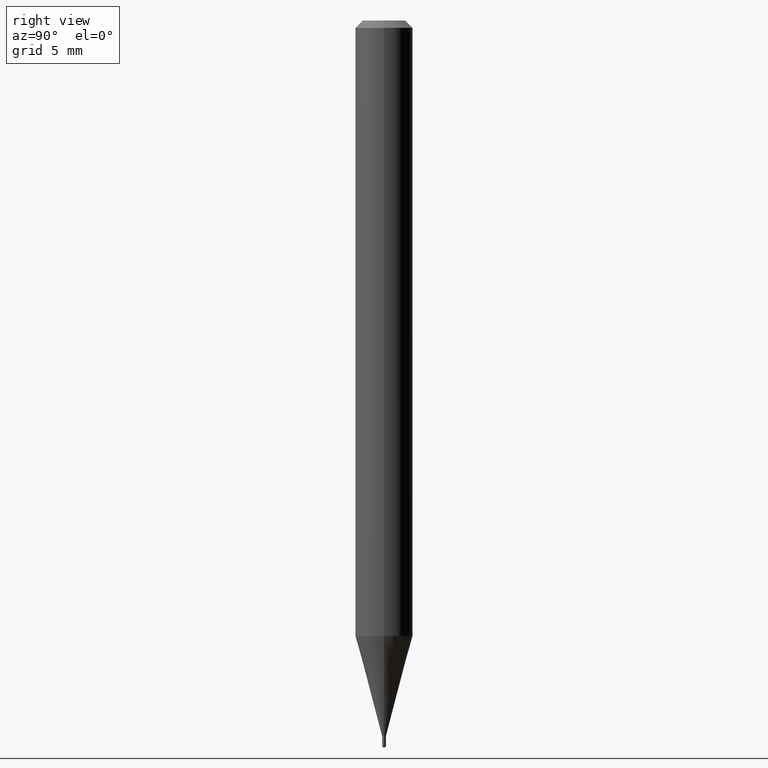
[diagram: clean part render]
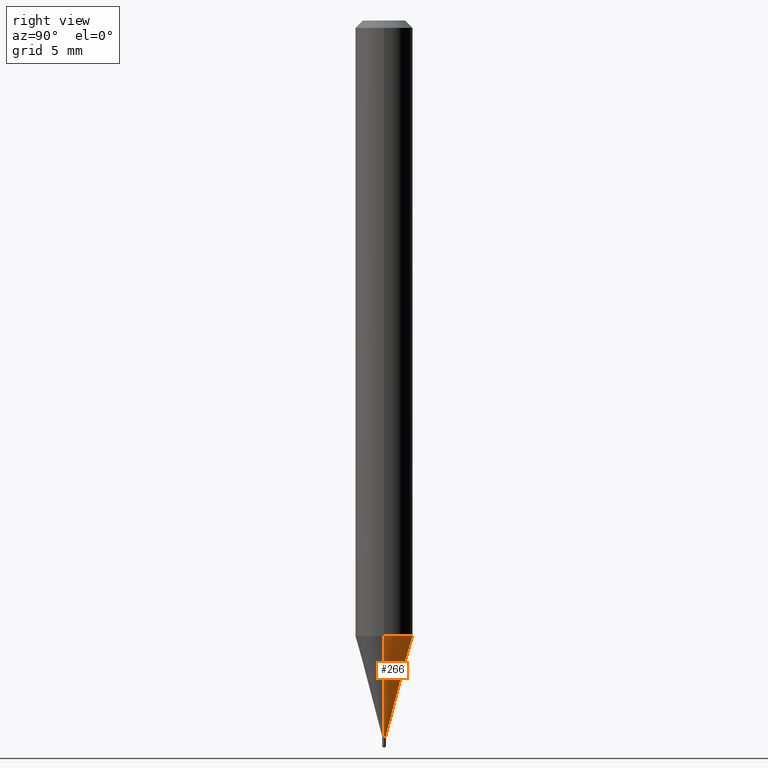
[diagram: same view with one face highlighted and labeled with its STEP entity id]
A machine part, right view. The second image highlights one B-rep face of the part: STEP entity #266.
In plain terms, the highlighted conical surface has half-angle 15 deg.
Its self-contained STEP definition (entity closure, byte-faithful):
#4 = VECTOR ( 'NONE', #139, 39.37007874015748143 ) ;
#18 = DIRECTION ( 'NONE',  ( 1.000000000000000000, -6.982962677686388195E-15, 0.000000000000000000 ) ) ;
#20 = CARTESIAN_POINT ( 'NONE',  ( 3.098076394908904962E-29, -4.423232016608266035E-15, -1.266864000502962107 ) ) ;
#26 = VERTEX_POINT ( 'NONE', #143 ) ;
#29 = EDGE_CURVE ( 'NONE', #59, #26, #282, .T. ) ;
#51 = DIRECTION ( 'NONE',  ( 0.2588190451025285110, 1.565188264969565170E-15, 0.9659258262890662028 ) ) ;
#59 = VERTEX_POINT ( 'NONE', #329 ) ;
#89 = LINE ( 'NONE', #163, #4 ) ;
#120 = ORIENTED_EDGE ( 'NONE', *, *, #392, .T. ) ;
#124 = AXIS2_PLACEMENT_3D ( 'NONE', #20, #177, #457 ) ;
#136 = LINE ( 'NONE', #443, #259 ) ;
#139 = DIRECTION ( 'NONE',  ( -0.2588190451025285110, 5.211531920934594429E-15, 0.9659258262890662028 ) ) ;
#143 = CARTESIAN_POINT ( 'NONE',  ( -0.05904999999999999832, -4.003656531141925753E-15, -1.266864000502962107 ) ) ;
#144 = AXIS2_PLACEMENT_3D ( 'NONE', #306, #494, #18 ) ;
#163 = CARTESIAN_POINT ( 'NONE',  ( -0.003950000000000198144, -5.113139833384005937E-15, -1.472499999999999920 ) ) ;
#164 = AXIS2_PLACEMENT_3D ( 'NONE', #504, #386, #310 ) ;
#177 = DIRECTION ( 'NONE',  ( -2.445468806185136597E-29, 3.491481338843145583E-15, 1.000000000000000000 ) ) ;
#182 = FACE_OUTER_BOUND ( 'NONE', #241, .T. ) ;
#206 = ORIENTED_EDGE ( 'NONE', *, *, #346, .T. ) ;
#225 = VERTEX_POINT ( 'NONE', #254 ) ;
#237 = EDGE_CURVE ( 'NONE', #225, #59, #136, .T. ) ;
#241 = EDGE_LOOP ( 'NONE', ( #120, #206, #273, #468 ) ) ;
#254 = CARTESIAN_POINT ( 'NONE',  ( 0.003950000000000198144, -5.168788974023393659E-15, -1.472499999999999920 ) ) ;
#259 = VECTOR ( 'NONE', #51, 39.37007874015748143 ) ;
#266 = ADVANCED_FACE ( 'NONE', ( #182 ), #317, .T. ) ;
#273 = ORIENTED_EDGE ( 'NONE', *, *, #29, .F. ) ;
#282 = CIRCLE ( 'NONE', #124, 0.05904999999999999832 ) ;
#306 = CARTESIAN_POINT ( 'NONE',  ( 3.600952817107613145E-29, -5.141206271446531536E-15, -1.472499999999999920 ) ) ;
#310 = DIRECTION ( 'NONE',  ( 1.000000000000000000, -6.982962677686388195E-15, 0.000000000000000000 ) ) ;
#317 = CONICAL_SURFACE ( 'NONE', #144, 0.003950000000000198144, 0.2617993877991574569 ) ;
#325 = CIRCLE ( 'NONE', #164, 0.003950000000000198144 ) ;
#329 = CARTESIAN_POINT ( 'NONE',  ( 0.05904999999999999832, -4.835575962725639377E-15, -1.266864000502962107 ) ) ;
#346 = EDGE_CURVE ( 'NONE', #501, #26, #89, .T. ) ;
#386 = DIRECTION ( 'NONE',  ( -2.445468806185136597E-29, 3.491481338843145583E-15, 1.000000000000000000 ) ) ;
#392 = EDGE_CURVE ( 'NONE', #225, #501, #325, .T. ) ;
#420 = CARTESIAN_POINT ( 'NONE',  ( -0.003950000000000198144, -4.558398182262966239E-15, -1.472499999999999920 ) ) ;
#443 = CARTESIAN_POINT ( 'NONE',  ( 0.003950000000000198144, -5.168788974023393659E-15, -1.472499999999999920 ) ) ;
#457 = DIRECTION ( 'NONE',  ( 1.000000000000000000, -6.982962677686273021E-15, 0.000000000000000000 ) ) ;
#468 = ORIENTED_EDGE ( 'NONE', *, *, #237, .F. ) ;
#494 = DIRECTION ( 'NONE',  ( -2.445468806185136597E-29, 3.491481338843145583E-15, 1.000000000000000000 ) ) ;
#501 = VERTEX_POINT ( 'NONE', #420 ) ;
#504 = CARTESIAN_POINT ( 'NONE',  ( 3.600952817107613145E-29, -5.141206271446531536E-15, -1.472499999999999920 ) ) ;